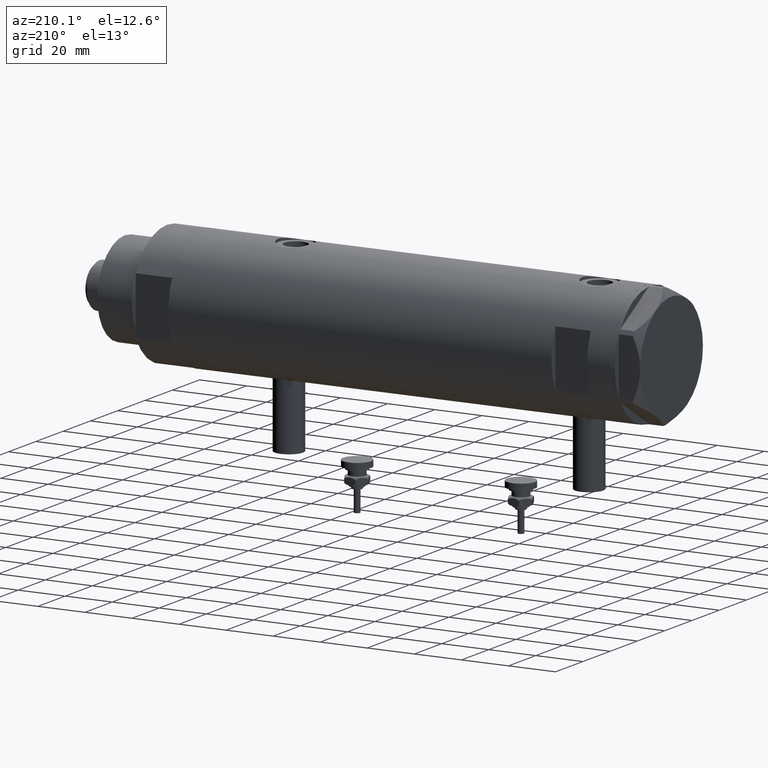
[diagram: clean part render]
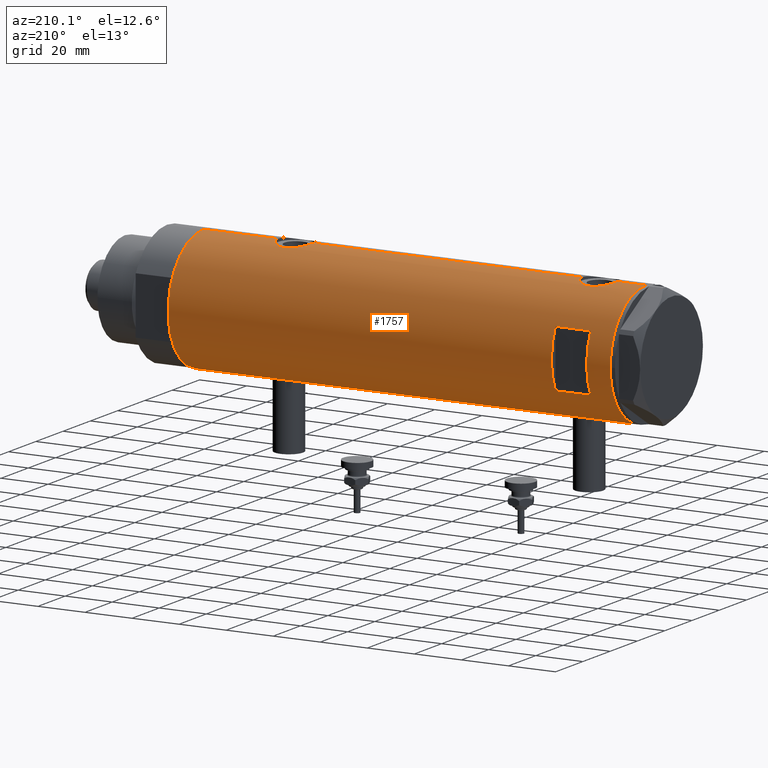
[diagram: same view with one face highlighted and labeled with its STEP entity id]
A machine part, auxiliary view. The second image highlights one B-rep face of the part: STEP entity #1757.
In plain terms, the highlighted cylindrical surface (partial cylindrical patch) has radius 26 mm, axis along (-1, -0, 0).
Its self-contained STEP definition (entity closure, byte-faithful):
#3 = CARTESIAN_POINT ( 'NONE',  ( -25.67095236150574777, 4.133649689219788925, 74.65535228274264057 ) ) ;
#16 = CARTESIAN_POINT ( 'NONE',  ( 25.11254978876589306, 6.737777305585155752, 71.11974648253585940 ) ) ;
#29 = CARTESIAN_POINT ( 'NONE',  ( -25.81251897318926680, 3.135439098787735190, 75.37199178085172946 ) ) ;
#86 = ORIENTED_EDGE ( 'NONE', *, *, #239, .T. ) ;
#97 = CARTESIAN_POINT ( 'NONE',  ( 0.000000000000000000, 0.000000000000000000, 93.95000000000000284 ) ) ;
#120 = CARTESIAN_POINT ( 'NONE',  ( -25.81206132723604796, 3.139065735901513055, 64.53021230639123473 ) ) ;
#161 = CARTESIAN_POINT ( 'NONE',  ( -25.85406084573621754, 2.777003695811657735, -52.03587158673904156 ) ) ;
#239 = EDGE_CURVE ( 'NONE', #767, #1150, #1666, .T. ) ;
#289 = LINE ( 'NONE', #2246, #4035 ) ;
#332 = DIRECTION ( 'NONE',  ( 0.000000000000000000, 4.625929269271486900E-15, 1.000000000000000000 ) ) ;
#344 = CARTESIAN_POINT ( 'NONE',  ( -26.00000000000000355, 1.227111019500118713E-15, 76.20000000000001705 ) ) ;
#349 = EDGE_CURVE ( 'NONE', #1827, #6166, #5914, .T. ) ;
#355 = VERTEX_POINT ( 'NONE', #4467 ) ;
#360 = CARTESIAN_POINT ( 'NONE',  ( 24.90976107960111818, 7.450765568638821001, 75.43882869351466525 ) ) ;
#378 = CARTESIAN_POINT ( 'NONE',  ( -25.59680708126580129, 4.563450671387948354, -61.92543949979970819 ) ) ;
#396 = CARTESIAN_POINT ( 'NONE',  ( 25.52465069878074289, 4.952713637311392247, 68.81255139184744962 ) ) ;
#402 = FACE_OUTER_BOUND ( 'NONE', #3021, .T. ) ;
#410 = CARTESIAN_POINT ( 'NONE',  ( 25.78997056644824326, 3.329333406239038951, -48.01165191566153112 ) ) ;
#425 = VERTEX_POINT ( 'NONE', #1969 ) ;
#431 = DIRECTION ( 'NONE',  ( 1.000000000000000000, 0.000000000000000000, 0.000000000000000000 ) ) ;
#438 = CARTESIAN_POINT ( 'NONE',  ( 25.98255381630415783, 0.9836221648041303389, -47.31066901941807856 ) ) ;
#440 = CARTESIAN_POINT ( 'NONE',  ( -25.92432690655987315, 2.018143994254076201, -63.57929422822715537 ) ) ;
#457 = CARTESIAN_POINT ( 'NONE',  ( 25.59685363299823635, 4.579266302355753382, 80.40972068102654191 ) ) ;
#473 = CARTESIAN_POINT ( 'NONE',  ( -25.36894112891957320, 5.694149517195235433, 67.36517494801691441 ) ) ;
#475 = ORIENTED_EDGE ( 'NONE', *, *, #3939, .F. ) ;
#501 = CARTESIAN_POINT ( 'NONE',  ( 12.12435565298214080, 23.00000000000000355, -93.95000000000000284 ) ) ;
#505 = CARTESIAN_POINT ( 'NONE',  ( -25.28673619335055278, 6.048783215285170378, 68.32449009651820404 ) ) ;
#512 = CARTESIAN_POINT ( 'NONE',  ( 26.00000000000000355, 0.000000000000000000, 93.95000000000000284 ) ) ;
#561 = CARTESIAN_POINT ( 'NONE',  ( -25.31738333113901263, 5.918941409682878074, 71.96757922472318114 ) ) ;
#595 = CARTESIAN_POINT ( 'NONE',  ( -25.85406084573621754, 2.777003695811651962, 75.56412841326095986 ) ) ;
#611 = B_SPLINE_CURVE_WITH_KNOTS ( 'NONE', 3,
 ( #2726, #5131, #4096, #2600, #733, #4639, #4540, #161, #2150, #1628, #3584, #5546, #2632, #3145, #1143, #5099, #2338, #2886, #3768, #6236, #5280, #3325, #4802, #5725, #5247, #6301, #881, #1438, #4293, #3362, #5315, #6199, #378, #1405, #1812, #6264, #5219, #440, #2400, #1844, #823, #849, #4832, #2818 ),
 .UNSPECIFIED., .F., .F.,
 ( 4, 2, 2, 2, 2, 2, 2, 2, 2, 2, 2, 2, 2, 2, 2, 2, 2, 2, 2, 2, 2, 4 ),
 ( 8.259724962660511443E-19, 0.001225774033668413547, 0.001838661050502616960, 0.002451548067336820590, 0.003677322101005227849, 0.004903096134673635108, 0.006128870168342044969, 0.007354644202010452228, 0.007967531218844647184, 0.008580418235678840405, 0.009806192269347230317, 0.01103196630301561676, 0.01225774033668400667, 0.01287062735351820163, 0.01348351437035239485, 0.01409640138718658807, 0.01470928840402078129, 0.01593506243768920069, 0.01716083647135761489, 0.01838661050502603256, 0.01899949752186024313, 0.01961238453869445023 ),
 .UNSPECIFIED. ) ;
#617 = CARTESIAN_POINT ( 'NONE',  ( 25.86510134953875450, 2.654921787384013854, -61.76867061694904493 ) ) ;
#620 = CARTESIAN_POINT ( 'NONE',  ( -26.00000000000000355, 3.184081677783118585E-15, -93.95000000000000284 ) ) ;
#647 = CARTESIAN_POINT ( 'NONE',  ( 25.30960479024496479, 5.958491152160522830, -59.33139677679963597 ) ) ;
#667 = DIRECTION ( 'NONE',  ( 0.000000000000000000, 0.000000000000000000, 1.000000000000000000 ) ) ;
#675 = EDGE_CURVE ( 'NONE', #1916, #355, #3410, .T. ) ;
#733 = CARTESIAN_POINT ( 'NONE',  ( -25.95015815577423268, 1.621168830448744158, -51.61041429560182081 ) ) ;
#741 = EDGE_CURVE ( 'NONE', #767, #2310, #5550, .T. ) ;
#757 = VERTEX_POINT ( 'NONE', #5361 ) ;
#767 = VERTEX_POINT ( 'NONE', #5070 ) ;
#823 = CARTESIAN_POINT ( 'NONE',  ( -25.98789693408478740, 0.8193301824842007530, -63.84948980265349405 ) ) ;
#834 = CARTESIAN_POINT ( 'NONE',  ( 25.78997056644825392, 3.329333406239046056, 81.18834808433850014 ) ) ;
#838 = CARTESIAN_POINT ( 'NONE',  ( 0.000000000000000000, 0.000000000000000000, -93.95000000000000284 ) ) ;
#847 = CARTESIAN_POINT ( 'NONE',  ( 25.08669247833291749, 6.831361936037321669, -51.64462260596209831 ) ) ;
#849 = CARTESIAN_POINT ( 'NONE',  ( -25.99759026373432036, 0.4091325989570689381, -63.88999890044897967 ) ) ;
#857 = CARTESIAN_POINT ( 'NONE',  ( 26.00000000000000355, 0.000000000000000000, -93.95000000000000284 ) ) ;
#864 = CARTESIAN_POINT ( 'NONE',  ( 25.78922176490238272, 3.335318700939508219, 67.71449431233527605 ) ) ;
#879 = CARTESIAN_POINT ( 'NONE',  ( 25.27545867390324119, 6.096774941222088628, -50.37522593042033492 ) ) ;
#881 = CARTESIAN_POINT ( 'NONE',  ( -25.38875076695534361, 5.605452563035141722, -60.42185900824105715 ) ) ;
#901 = CARTESIAN_POINT ( 'NONE',  ( 24.95233689475078620, 7.306396477445174398, 72.73896186853336587 ) ) ;
#916 = CARTESIAN_POINT ( 'NONE',  ( 25.17424625143663164, 6.506691718592096940, -58.51241626033723975 ) ) ;
#931 = CARTESIAN_POINT ( 'NONE',  ( 25.72868876879096334, 3.768709330223698473, 80.95267486870062612 ) ) ;
#941 = LINE ( 'NONE', #5371, #5575 ) ;
#975 = CARTESIAN_POINT ( 'NONE',  ( 25.00820649268565887, 7.115348876445586335, -52.32815999524549966 ) ) ;
#978 = CARTESIAN_POINT ( 'NONE',  ( -26.00000000000000355, 3.184077527325983904E-15, 63.70000000000000995 ) ) ;
#1016 = CARTESIAN_POINT ( 'NONE',  ( -25.31518616157687518, 5.930210831981638009, 67.93412882792976859 ) ) ;
#1042 = CARTESIAN_POINT ( 'NONE',  ( -25.99759026373432391, 0.4091325989570679389, 63.71000109955102175 ) ) ;
#1072 = CARTESIAN_POINT ( 'NONE',  ( -25.38875076695534361, 5.605452563035131064, 67.17814099175893716 ) ) ;
#1101 = CARTESIAN_POINT ( 'NONE',  ( 26.00000000000000711, 0.4983968644076025023, -62.25000000000002132 ) ) ;
#1131 = CARTESIAN_POINT ( 'NONE',  ( 25.38132706741445688, 5.649034551923786118, -59.70731952814044519 ) ) ;
#1143 = CARTESIAN_POINT ( 'NONE',  ( -25.38675822915647728, 5.615881323213575804, -54.87693218337989265 ) ) ;
#1150 = VERTEX_POINT ( 'NONE', #2537 ) ;
#1151 = DIRECTION ( 'NONE',  ( 1.000000000000000000, -5.329070518200751394E-15, 0.000000000000000000 ) ) ;
#1174 = LINE ( 'NONE', #3142, #6187 ) ;
#1197 = CARTESIAN_POINT ( 'NONE',  ( 25.98569222077104968, 0.9879514382926379845, -62.20081846687560301 ) ) ;
#1220 = ORIENTED_EDGE ( 'NONE', *, *, #4030, .F. ) ;
#1227 = ORIENTED_EDGE ( 'NONE', *, *, #3263, .F. ) ;
#1324 = CARTESIAN_POINT ( 'NONE',  ( 12.12435565298213724, 23.00000000000000355, 68.95000000000000284 ) ) ;
#1331 = CARTESIAN_POINT ( 'NONE',  ( 26.00000000000000000, 0.2455784580650491877, -47.25000000000000000 ) ) ;
#1349 = CARTESIAN_POINT ( 'NONE',  ( 25.00820649268565887, 7.115348876445588999, 76.87184000475453161 ) ) ;
#1350 = EDGE_CURVE ( 'NONE', #2022, #2547, #289, .T. ) ;
#1405 = CARTESIAN_POINT ( 'NONE',  ( -25.67176285215958131, 4.128807479817791837, -62.35991598451128226 ) ) ;
#1438 = CARTESIAN_POINT ( 'NONE',  ( -25.43062364804612940, 5.412314182902760784, -60.78227648580931941 ) ) ;
#1450 = CARTESIAN_POINT ( 'NONE',  ( 24.90951684770588770, 7.451587374037535128, 73.46604395478802019 ) ) ;
#1451 = EDGE_CURVE ( 'NONE', #355, #757, #941, .T. ) ;
#1495 = CARTESIAN_POINT ( 'NONE',  ( -25.92257874449350652, 2.014648337067151296, 75.86996418363679595 ) ) ;
#1532 = VERTEX_POINT ( 'NONE', #2097 ) ;
#1574 = EDGE_CURVE ( 'NONE', #1532, #1916, #1616, .T. ) ;
#1613 = CARTESIAN_POINT ( 'NONE',  ( 25.48882460966380492, 5.133289275481218716, -60.22343523597908188 ) ) ;
#1616 = LINE ( 'NONE', #501, #5473 ) ;
#1628 = CARTESIAN_POINT ( 'NONE',  ( -25.72105193281916868, 3.813738527046913962, -52.68166308900566719 ) ) ;
#1666 = CIRCLE ( 'NONE', #4022, 26.00000000000000355 ) ;
#1708 = ORIENTED_EDGE ( 'NONE', *, *, #675, .F. ) ;
#1754 = VERTEX_POINT ( 'NONE', #5122 ) ;
#1757 = ADVANCED_FACE ( 'NONE', ( #3786, #402 ), #6188, .T. ) ;
#1812 = CARTESIAN_POINT ( 'NONE',  ( -25.72087293759780025, 3.814831448865739105, -62.61738294827859619 ) ) ;
#1821 = DIRECTION ( 'NONE',  ( 0.000000000000000000, 0.000000000000000000, 1.000000000000000000 ) ) ;
#1827 = VERTEX_POINT ( 'NONE', #3313 ) ;
#1828 = CARTESIAN_POINT ( 'NONE',  ( 25.17424625143663519, 6.506691718592092499, 70.68758373966274178 ) ) ;
#1844 = CARTESIAN_POINT ( 'NONE',  ( -25.98057228346870673, 1.024901789261887464, -63.81880585854828070 ) ) ;
#1861 = CARTESIAN_POINT ( 'NONE',  ( 25.11550258961940330, 6.725017566862031337, 77.77928477806021590 ) ) ;
#1874 = CARTESIAN_POINT ( 'NONE',  ( 25.31017500740584936, 5.951503630041857562, -50.17950407362597076 ) ) ;
#1893 = CARTESIAN_POINT ( 'NONE',  ( 25.20855488770172315, 6.367749707222633226, 78.42002223040960018 ) ) ;
#1909 = CARTESIAN_POINT ( 'NONE',  ( 24.89484527721569052, 7.499778575171895056, -55.24550805482936511 ) ) ;
#1916 = VERTEX_POINT ( 'NONE', #1324 ) ;
#1948 = CARTESIAN_POINT ( 'NONE',  ( -25.42927140605242187, 5.422776733968214025, 73.08443996013286892 ) ) ;
#1962 = CARTESIAN_POINT ( 'NONE',  ( 25.86510134953875450, 2.654921787384013854, 67.43132938305096502 ) ) ;
#1964 = CARTESIAN_POINT ( 'NONE',  ( 26.00000000000000355, 0.000000000000000000, -93.95000000000000284 ) ) ;
#1969 = CARTESIAN_POINT ( 'NONE',  ( -26.00000000000000355, 3.184077527250253257E-15, -63.90000000000001279 ) ) ;
#1973 = CARTESIAN_POINT ( 'NONE',  ( -25.52242378584899640, 4.965907353613394193, 73.76719602921740204 ) ) ;
#2022 = VERTEX_POINT ( 'NONE', #2188 ) ;
#2047 = VERTEX_POINT ( 'NONE', #5142 ) ;
#2070 = CARTESIAN_POINT ( 'NONE',  ( -25.23766275406408965, 6.249830297096023557, 70.36191904555120402 ) ) ;
#2097 = CARTESIAN_POINT ( 'NONE',  ( 12.12435565298214080, 23.00000000000000355, 83.95000000000000284 ) ) ;
#2150 = CARTESIAN_POINT ( 'NONE',  ( -25.81251897318926680, 3.135439098787741852, -52.22800821914827907 ) ) ;
#2188 = CARTESIAN_POINT ( 'NONE',  ( 26.00000000000000355, -3.975028449552882818E-20, 81.94999999999998863 ) ) ;
#2223 = B_SPLINE_CURVE_WITH_KNOTS ( 'NONE', 3,
 ( #344, #4256, #3454, #3040, #5410, #1495, #5374, #595, #29, #4385, #3, #2564, #1973, #1948, #3895, #4959, #561, #5440, #3931, #4475, #2070, #3486, #2911, #505, #1016, #473, #1072, #5883, #5948, #4991, #2470, #3009, #4504, #2948, #3510, #120, #3996, #4024, #2979, #5848, #2532, #1042, #5975, #978 ),
 .UNSPECIFIED., .F., .F.,
 ( 4, 2, 2, 2, 2, 2, 2, 2, 2, 2, 2, 2, 2, 2, 2, 2, 2, 2, 2, 2, 2, 4 ),
 ( 1.191872608207982896E-18, 0.001225774033668414415, 0.001838661050502624766, 0.002451548067336834901, 0.003677322101005254303, 0.004903096134673673272, 0.006128870168342093541, 0.007354644202010512943, 0.007967531218844704430, 0.008580418235678894182, 0.009806192269347313584, 0.01103196630301573472, 0.01225774033668415586, 0.01287062735351834561, 0.01348351437035253536, 0.01409640138718672858, 0.01470928840402092007, 0.01593506243768930131, 0.01716083647135768081, 0.01838661050502606725, 0.01899949752186025700, 0.01961238453869444676 ),
 .UNSPECIFIED. ) ;
#2246 = CARTESIAN_POINT ( 'NONE',  ( 26.00000000000000355, 0.000000000000000000, -93.95000000000000284 ) ) ;
#2310 = VERTEX_POINT ( 'NONE', #2700 ) ;
#2321 = CARTESIAN_POINT ( 'NONE',  ( 25.93077501166307641, 1.957027822413550888, 81.70697858562411398 ) ) ;
#2337 = CARTESIAN_POINT ( 'NONE',  ( 25.97197502027375293, 1.230965554787593730, -47.34759175501623218 ) ) ;
#2338 = CARTESIAN_POINT ( 'NONE',  ( -25.31738333113901618, 5.918941409682884291, -55.63242077527677765 ) ) ;
#2352 = ORIENTED_EDGE ( 'NONE', *, *, #1574, .F. ) ;
#2382 = CARTESIAN_POINT ( 'NONE',  ( 25.63006864069250668, 4.375159448492141223, 68.35345588241118264 ) ) ;
#2397 = VECTOR ( 'NONE', #667, 1000.000000000000000 ) ;
#2400 = CARTESIAN_POINT ( 'NONE',  ( -25.95208098418916975, 1.628413954368986172, -63.69806792170716392 ) ) ;
#2415 = EDGE_CURVE ( 'NONE', #2047, #1754, #4769, .T. ) ;
#2432 = CARTESIAN_POINT ( 'NONE',  ( 25.59685363299823280, 4.579266302355748053, -48.79027931897346804 ) ) ;
#2457 = CARTESIAN_POINT ( 'NONE',  ( 25.88814720404043968, 2.420758939209242566, 67.34711713171545000 ) ) ;
#2467 = DIRECTION ( 'NONE',  ( -0.000000000000000000, -0.000000000000000000, -1.000000000000000000 ) ) ;
#2470 = CARTESIAN_POINT ( 'NONE',  ( -25.52275868012768356, 4.960454986366445773, 66.14238370593371030 ) ) ;
#2532 = CARTESIAN_POINT ( 'NONE',  ( -25.98789693408479096, 0.8193301824841990877, 63.75051019734653579 ) ) ;
#2537 = CARTESIAN_POINT ( 'NONE',  ( -26.00000000000000355, 3.184081677783118585E-15, -93.95000000000000284 ) ) ;
#2547 = VERTEX_POINT ( 'NONE', #512 ) ;
#2564 = CARTESIAN_POINT ( 'NONE',  ( -25.57189498399054983, 4.707763994471525493, 74.08090281055548587 ) ) ;
#2575 = ORIENTED_EDGE ( 'NONE', *, *, #3561, .F. ) ;
#2585 = CARTESIAN_POINT ( 'NONE',  ( 25.72923282622328855, 3.765147152416745246, -61.25485575784708914 ) ) ;
#2593 = DIRECTION ( 'NONE',  ( 0.000000000000000000, 0.000000000000000000, 1.000000000000000000 ) ) ;
#2600 = CARTESIAN_POINT ( 'NONE',  ( -25.96182217530152769, 1.422664245316466847, -51.56064726907609241 ) ) ;
#2632 = CARTESIAN_POINT ( 'NONE',  ( -25.52242378584900351, 4.965907353613399522, -53.83280397078263491 ) ) ;
#2700 = CARTESIAN_POINT ( 'NONE',  ( 26.00000000000000355, 3.343657407582877388E-16, -62.25000000000000000 ) ) ;
#2726 = CARTESIAN_POINT ( 'NONE',  ( -26.00000000000000355, -8.503928565788675107E-16, -51.39999999999999858 ) ) ;
#2731 = EDGE_CURVE ( 'NONE', #5866, #4735, #1174, .T. ) ;
#2752 = DIRECTION ( 'NONE',  ( 0.000000000000000000, 0.000000000000000000, 1.000000000000000000 ) ) ;
#2769 = B_SPLINE_CURVE_WITH_KNOTS ( 'NONE', 3,
 ( #5263, #4881, #5298, #3780, #5358, #2457, #1962, #864, #6222, #2382, #5327, #396, #6281, #4336, #4402, #1828, #16, #3378, #2800, #4305, #901, #1450, #5865, #2897, #360, #3280, #1349, #3308, #1861, #2833, #1893, #2870, #4747, #4781, #6249, #5232, #457, #931, #834, #3811, #2321, #2927, #3847, #4816, #5801, #5766 ),
 .UNSPECIFIED., .F., .F.,
 ( 4, 2, 2, 2, 2, 2, 2, 2, 2, 2, 2, 2, 2, 2, 2, 2, 2, 2, 2, 2, 2, 2, 4 ),
 ( 2.668061416744542197E-18, 0.001473395154583026240, 0.002210092731874533506, 0.002946790309166040771, 0.004420185463749071349, 0.005156883041040585987, 0.005893580618332101492, 0.007366975772915162861, 0.008840370927498224229, 0.009577068504789754480, 0.01031376608208128473, 0.01178716123666438687, 0.01326055639124748900, 0.01473395154583059113, 0.01547064912312212312, 0.01620734670041365511, 0.01694404427770518709, 0.01768074185499672255, 0.01915413700957975529, 0.02062753216416278457, 0.02210092731874581731, 0.02283762489603732848, 0.02357432247332884312 ),
 .UNSPECIFIED. ) ;
#2800 = CARTESIAN_POINT ( 'NONE',  ( 25.01140519645288762, 7.101774040639619479, 72.02607764299175130 ) ) ;
#2811 = CARTESIAN_POINT ( 'NONE',  ( -26.00000000000000355, 3.184081677783118585E-15, -93.95000000000000284 ) ) ;
#2815 = DIRECTION ( 'NONE',  ( 0.000000000000000000, 0.000000000000000000, 1.000000000000000000 ) ) ;
#2816 = CARTESIAN_POINT ( 'NONE',  ( 26.00000000000000355, -3.975025925197986111E-20, -47.25000000000000000 ) ) ;
#2818 = CARTESIAN_POINT ( 'NONE',  ( -26.00000000000000355, 3.184077527250253257E-15, -63.90000000000001279 ) ) ;
#2833 = CARTESIAN_POINT ( 'NONE',  ( 25.17636585680005723, 6.493453152855874322, 78.21099249662802322 ) ) ;
#2851 = CARTESIAN_POINT ( 'NONE',  ( 24.95233689475079331, 7.306396477445179727, -56.46103813146666539 ) ) ;
#2870 = CARTESIAN_POINT ( 'NONE',  ( 25.27545867390324830, 6.096774941222087740, 78.82477406957966082 ) ) ;
#2883 = CARTESIAN_POINT ( 'NONE',  ( 24.90976107960111818, 7.450765568638821890, -53.76117130648535181 ) ) ;
#2886 = CARTESIAN_POINT ( 'NONE',  ( -25.28915991580758771, 6.038390257328915212, -56.02447348853092279 ) ) ;
#2897 = CARTESIAN_POINT ( 'NONE',  ( 24.89471231507667426, 7.500219916954787180, 74.93878226883029470 ) ) ;
#2911 = CARTESIAN_POINT ( 'NONE',  ( -25.24784248027028966, 6.209126813737962713, 69.12731838311943022 ) ) ;
#2927 = CARTESIAN_POINT ( 'NONE',  ( 25.97197502027376004, 1.230965554787597060, 81.85240824498373513 ) ) ;
#2945 = CARTESIAN_POINT ( 'NONE',  ( 25.11550258961939974, 6.725017566862030449, -51.42071522193980826 ) ) ;
#2948 = CARTESIAN_POINT ( 'NONE',  ( -25.67176285215957776, 4.128807479817784731, 65.24008401548877600 ) ) ;
#2979 = CARTESIAN_POINT ( 'NONE',  ( -25.95208098418916975, 1.628413954368974625, 63.90193207829288013 ) ) ;
#3009 = CARTESIAN_POINT ( 'NONE',  ( -25.57167265924275057, 4.701795585128869526, 65.82723711689968127 ) ) ;
#3021 = EDGE_LOOP ( 'NONE', ( #86, #5650, #475, #3992, #1220, #4765, #3681, #4369, #1227, #5990, #3800, #5735 ) ) ;
#3023 = AXIS2_PLACEMENT_3D ( 'NONE', #838, #4723, #431 ) ;
#3040 = CARTESIAN_POINT ( 'NONE',  ( -25.96182217530153480, 1.422664245316465959, 76.03935273092392322 ) ) ;
#3066 = CARTESIAN_POINT ( 'NONE',  ( 25.88814720404043968, 2.420758939209242566, -61.85288286828453153 ) ) ;
#3142 = CARTESIAN_POINT ( 'NONE',  ( -26.00000000000000355, 3.184081677783118585E-15, -93.95000000000000284 ) ) ;
#3145 = CARTESIAN_POINT ( 'NONE',  ( -25.42927140605242187, 5.422776733968219354, -54.51556003986718224 ) ) ;
#3165 = CARTESIAN_POINT ( 'NONE',  ( 25.94484652078418563, 1.709678645892020787, -62.05665346759173673 ) ) ;
#3226 = VECTOR ( 'NONE', #1821, 1000.000000000000000 ) ;
#3235 = ORIENTED_EDGE ( 'NONE', *, *, #1451, .F. ) ;
#3263 = EDGE_CURVE ( 'NONE', #1754, #2022, #2769, .T. ) ;
#3280 = CARTESIAN_POINT ( 'NONE',  ( 24.96662810169869573, 7.257932614256865200, 76.40297309526735603 ) ) ;
#3292 = CARTESIAN_POINT ( 'NONE',  ( 25.38117076385348625, 5.641057083563588037, -49.80143420258151821 ) ) ;
#3308 = CARTESIAN_POINT ( 'NONE',  ( 25.08669247833292459, 6.831361936037321669, 77.55537739403790454 ) ) ;
#3311 = AXIS2_PLACEMENT_3D ( 'NONE', #5770, #332, #4277 ) ;
#3313 = CARTESIAN_POINT ( 'NONE',  ( -26.00000000000000355, -8.503928565788675107E-16, -51.39999999999999858 ) ) ;
#3323 = CARTESIAN_POINT ( 'NONE',  ( 25.11254978876589306, 6.737777305585159304, -58.08025351746411502 ) ) ;
#3325 = CARTESIAN_POINT ( 'NONE',  ( -25.23757896588369221, 6.250168635417633567, -58.05675308410501145 ) ) ;
#3362 = CARTESIAN_POINT ( 'NONE',  ( -25.49884629689154636, 5.081547904122044379, -61.29439805696090815 ) ) ;
#3365 = CIRCLE ( 'NONE', #4691, 26.00000000000000355 ) ;
#3378 = CARTESIAN_POINT ( 'NONE',  ( 25.03487248886523986, 7.018875226450789206, 71.79576782607935570 ) ) ;
#3385 = LINE ( 'NONE', #2811, #3861 ) ;
#3410 = CIRCLE ( 'NONE', #3311, 26.00000000000000355 ) ;
#3415 = CARTESIAN_POINT ( 'NONE',  ( 24.97016856345952718, 7.245430721349219283, -56.70303040919392856 ) ) ;
#3442 = DIRECTION ( 'NONE',  ( 0.000000000000000000, 0.000000000000000000, 1.000000000000000000 ) ) ;
#3454 = CARTESIAN_POINT ( 'NONE',  ( -25.99009688862344092, 0.8219492608955324409, 76.15915939226574949 ) ) ;
#3486 = CARTESIAN_POINT ( 'NONE',  ( -25.23757896588369576, 6.250168635417627350, 69.54324691589501128 ) ) ;
#3487 = DIRECTION ( 'NONE',  ( 1.000000000000000000, 0.000000000000000000, 0.000000000000000000 ) ) ;
#3510 = CARTESIAN_POINT ( 'NONE',  ( -25.72087293759779669, 3.814831448865735997, 64.98261705172141944 ) ) ;
#3561 = EDGE_CURVE ( 'NONE', #757, #1532, #5387, .T. ) ;
#3584 = CARTESIAN_POINT ( 'NONE',  ( -25.67095236150573712, 4.133649689219792478, -52.94464771725741770 ) ) ;
#3631 = CARTESIAN_POINT ( 'NONE',  ( -26.00000000000000355, 3.184077527325983904E-15, 63.70000000000000995 ) ) ;
#3681 = ORIENTED_EDGE ( 'NONE', *, *, #5243, .F. ) ;
#3768 = CARTESIAN_POINT ( 'NONE',  ( -25.27696731428695287, 6.089059008147567731, -56.22583693040519393 ) ) ;
#3780 = CARTESIAN_POINT ( 'NONE',  ( 25.94484652078418563, 1.709678645892022342, 67.14334653240823059 ) ) ;
#3786 = FACE_BOUND ( 'NONE', #4259, .T. ) ;
#3800 = ORIENTED_EDGE ( 'NONE', *, *, #5779, .F. ) ;
#3811 = CARTESIAN_POINT ( 'NONE',  ( 25.89067367629246164, 2.424883365422562775, 81.56405204505169593 ) ) ;
#3847 = CARTESIAN_POINT ( 'NONE',  ( 25.98255381630416139, 0.9836221648041364451, 81.88933098058191717 ) ) ;
#3861 = VECTOR ( 'NONE', #2752, 1000.000000000000000 ) ;
#3893 = CARTESIAN_POINT ( 'NONE',  ( 25.41763780493360514, 5.474943943663457269, -49.61823686211067042 ) ) ;
#3895 = CARTESIAN_POINT ( 'NONE',  ( -25.38675822915647728, 5.615881323213574028, 72.72306781662010167 ) ) ;
#3905 = CARTESIAN_POINT ( 'NONE',  ( -26.00000000000000355, 3.184081677783118585E-15, 93.95000000000000284 ) ) ;
#3931 = CARTESIAN_POINT ( 'NONE',  ( -25.27696731428695998, 6.089059008147561514, 71.37416306959482881 ) ) ;
#3939 = EDGE_CURVE ( 'NONE', #1827, #425, #611, .T. ) ;
#3992 = ORIENTED_EDGE ( 'NONE', *, *, #349, .T. ) ;
#3996 = CARTESIAN_POINT ( 'NONE',  ( -25.85449082491264150, 2.772892880050696007, 64.33390702514678594 ) ) ;
#4022 = AXIS2_PLACEMENT_3D ( 'NONE', #5720, #4858, #4378 ) ;
#4024 = CARTESIAN_POINT ( 'NONE',  ( -25.92432690655987315, 2.018143994254077978, 64.02070577177286737 ) ) ;
#4030 = EDGE_CURVE ( 'NONE', #5866, #6166, #2223, .T. ) ;
#4035 = VECTOR ( 'NONE', #6138, 1000.000000000000000 ) ;
#4048 = CARTESIAN_POINT ( 'NONE',  ( 25.52465069878074999, 4.952713637311402906, -60.38744860815256743 ) ) ;
#4049 = AXIS2_PLACEMENT_3D ( 'NONE', #5618, #5199, #1151 ) ;
#4096 = CARTESIAN_POINT ( 'NONE',  ( -25.99009688862344092, 0.8219492608955333290, -51.44084060773424483 ) ) ;
#4256 = CARTESIAN_POINT ( 'NONE',  ( -26.00000000000000711, 0.4145874687851191509, 76.20000000000003126 ) ) ;
#4259 = EDGE_LOOP ( 'NONE', ( #3235, #1708, #2352, #2575 ) ) ;
#4277 = DIRECTION ( 'NONE',  ( 0.000000000000000000, 1.000000000000000000, -4.803849625781927035E-15 ) ) ;
#4293 = CARTESIAN_POINT ( 'NONE',  ( -25.45277932469921467, 5.307477387851106343, -60.95672800165311855 ) ) ;
#4305 = CARTESIAN_POINT ( 'NONE',  ( 24.97016856345952007, 7.245430721349213954, 72.49696959080606007 ) ) ;
#4336 = CARTESIAN_POINT ( 'NONE',  ( 25.38132706741445332, 5.649034551923781677, 69.49268047185955766 ) ) ;
#4369 = ORIENTED_EDGE ( 'NONE', *, *, #1350, .F. ) ;
#4378 = DIRECTION ( 'NONE',  ( 1.000000000000000000, 0.000000000000000000, 0.000000000000000000 ) ) ;
#4385 = CARTESIAN_POINT ( 'NONE',  ( -25.72105193281917579, 3.813738527046907745, 74.91833691099432713 ) ) ;
#4402 = CARTESIAN_POINT ( 'NONE',  ( 25.30960479024496479, 5.958491152160513948, 69.86860322320036687 ) ) ;
#4467 = CARTESIAN_POINT ( 'NONE',  ( -12.12435565298214080, 23.00000000000000355, 68.95000000000000284 ) ) ;
#4475 = CARTESIAN_POINT ( 'NONE',  ( -25.24766879991037172, 6.209837761082654062, 70.76849569029700149 ) ) ;
#4504 = CARTESIAN_POINT ( 'NONE',  ( -25.59680708126579773, 4.563450671387936808, 65.67456050020027192 ) ) ;
#4524 = CARTESIAN_POINT ( 'NONE',  ( 25.59528664075983428, 4.573671112500298896, -60.69909503516726090 ) ) ;
#4527 = DIRECTION ( 'NONE',  ( 0.000000000000000000, 0.000000000000000000, 1.000000000000000000 ) ) ;
#4540 = CARTESIAN_POINT ( 'NONE',  ( -25.90661719257678541, 2.209805098346977914, -51.80011254218477745 ) ) ;
#4639 = CARTESIAN_POINT ( 'NONE',  ( -25.92257874449351007, 2.014648337067152184, -51.73003581636323389 ) ) ;
#4691 = AXIS2_PLACEMENT_3D ( 'NONE', #97, #2593, #3487 ) ;
#4723 = DIRECTION ( 'NONE',  ( 0.000000000000000000, 0.000000000000000000, 1.000000000000000000 ) ) ;
#4735 = VERTEX_POINT ( 'NONE', #3905 ) ;
#4747 = CARTESIAN_POINT ( 'NONE',  ( 25.31017500740586001, 5.951503630041874437, 79.02049592637401076 ) ) ;
#4765 = ORIENTED_EDGE ( 'NONE', *, *, #2731, .T. ) ;
#4769 = LINE ( 'NONE', #857, #3226 ) ;
#4781 = CARTESIAN_POINT ( 'NONE',  ( 25.38117076385347559, 5.641057083563602248, 79.39856579741847042 ) ) ;
#4801 = CARTESIAN_POINT ( 'NONE',  ( 25.52590365620542912, 4.955152228772147893, -49.09876272411761988 ) ) ;
#4802 = CARTESIAN_POINT ( 'NONE',  ( -25.24784248027028966, 6.209126813737967154, -58.47268161688059251 ) ) ;
#4816 = CARTESIAN_POINT ( 'NONE',  ( 25.99652140603931727, 0.4914164889130596126, 81.93796820480459075 ) ) ;
#4830 = CARTESIAN_POINT ( 'NONE',  ( 24.96662810169869573, 7.257932614256868753, -52.79702690473266102 ) ) ;
#4832 = CARTESIAN_POINT ( 'NONE',  ( -26.00000000000000711, 0.2043916521039016998, -63.90000000000001279 ) ) ;
#4858 = DIRECTION ( 'NONE',  ( 0.000000000000000000, 0.000000000000000000, 1.000000000000000000 ) ) ;
#4881 = CARTESIAN_POINT ( 'NONE',  ( 26.00000000000001066, 0.4983968644076011700, 66.95000000000003126 ) ) ;
#4896 = CARTESIAN_POINT ( 'NONE',  ( 25.93077501166307641, 1.957027822413551332, -47.49302141437592439 ) ) ;
#4959 = CARTESIAN_POINT ( 'NONE',  ( -25.33346170681504361, 5.849967696906720249, 72.15947052099508596 ) ) ;
#4991 = CARTESIAN_POINT ( 'NONE',  ( -25.49884629689154281, 5.081547904122039938, 66.30560194303913590 ) ) ;
#5070 = CARTESIAN_POINT ( 'NONE',  ( 26.00000000000000355, 0.000000000000000000, -93.95000000000000284 ) ) ;
#5099 = CARTESIAN_POINT ( 'NONE',  ( -25.33346170681504006, 5.849967696906726466, -55.44052947900495809 ) ) ;
#5119 = CARTESIAN_POINT ( 'NONE',  ( 25.92799636947105313, 1.948138538329397651, -61.99677687788213376 ) ) ;
#5122 = CARTESIAN_POINT ( 'NONE',  ( 26.00000000000000355, -2.747580718823405516E-15, 66.95000000000000284 ) ) ;
#5131 = CARTESIAN_POINT ( 'NONE',  ( -26.00000000000000711, 0.4145874687851193174, -51.39999999999999858 ) ) ;
#5142 = CARTESIAN_POINT ( 'NONE',  ( 26.00000000000000355, -3.975025925197986111E-20, -47.25000000000000000 ) ) ;
#5199 = DIRECTION ( 'NONE',  ( -0.000000000000000000, -0.000000000000000000, -1.000000000000000000 ) ) ;
#5219 = CARTESIAN_POINT ( 'NONE',  ( -25.85449082491264150, 2.772892880050693787, -63.26609297485322259 ) ) ;
#5232 = CARTESIAN_POINT ( 'NONE',  ( 25.52590365620543622, 4.955152228772151446, 80.10123727588241138 ) ) ;
#5243 = EDGE_CURVE ( 'NONE', #2547, #4735, #3365, .T. ) ;
#5244 = CARTESIAN_POINT ( 'NONE',  ( 25.01140519645288762, 7.101774040639623919, -57.17392235700823733 ) ) ;
#5247 = CARTESIAN_POINT ( 'NONE',  ( -25.31518616157687163, 5.930210831981644226, -59.66587117207024704 ) ) ;
#5263 = CARTESIAN_POINT ( 'NONE',  ( 26.00000000000000355, -2.747580718823405516E-15, 66.95000000000000284 ) ) ;
#5277 = CARTESIAN_POINT ( 'NONE',  ( 24.89471231507667071, 7.500219916954787180, -54.26121773116971525 ) ) ;
#5280 = CARTESIAN_POINT ( 'NONE',  ( -25.23766275406409676, 6.249830297096031551, -57.23808095444884003 ) ) ;
#5298 = CARTESIAN_POINT ( 'NONE',  ( 25.98569222077104968, 0.9879514382926418703, 66.99918153312439983 ) ) ;
#5313 = CARTESIAN_POINT ( 'NONE',  ( 24.90951684770588415, 7.451587374037536016, -55.73395604521197555 ) ) ;
#5315 = CARTESIAN_POINT ( 'NONE',  ( -25.52275868012768356, 4.960454986366454655, -61.45761629406634796 ) ) ;
#5327 = CARTESIAN_POINT ( 'NONE',  ( 25.59528664075984139, 4.573671112500290903, 68.50090496483272773 ) ) ;
#5358 = CARTESIAN_POINT ( 'NONE',  ( 25.92799636947105668, 1.948138538329397651, 67.20322312211786198 ) ) ;
#5361 = CARTESIAN_POINT ( 'NONE',  ( -12.12435565298214080, 23.00000000000000355, 83.95000000000000284 ) ) ;
#5371 = CARTESIAN_POINT ( 'NONE',  ( -12.12435565298214080, 23.00000000000000355, -93.95000000000000284 ) ) ;
#5374 = CARTESIAN_POINT ( 'NONE',  ( -25.90661719257679607, 2.209805098346973029, 75.79988745781523107 ) ) ;
#5387 = CIRCLE ( 'NONE', #4049, 26.00000000000000355 ) ;
#5410 = CARTESIAN_POINT ( 'NONE',  ( -25.95015815577422913, 1.621168830448742826, 75.98958570439820903 ) ) ;
#5440 = CARTESIAN_POINT ( 'NONE',  ( -25.28915991580760192, 6.038390257328910771, 71.57552651146907863 ) ) ;
#5460 = EDGE_CURVE ( 'NONE', #1150, #425, #3385, .T. ) ;
#5473 = VECTOR ( 'NONE', #2467, 1000.000000000000000 ) ;
#5532 = CARTESIAN_POINT ( 'NONE',  ( 25.63006864069249602, 4.375159448492148329, -60.84654411758881309 ) ) ;
#5546 = CARTESIAN_POINT ( 'NONE',  ( -25.57189498399055694, 4.707763994471532598, -53.51909718944453687 ) ) ;
#5550 = LINE ( 'NONE', #1964, #2397 ) ;
#5575 = VECTOR ( 'NONE', #2815, 1000.000000000000000 ) ;
#5618 = CARTESIAN_POINT ( 'NONE',  ( 0.000000000000000000, 0.000000000000000000, 83.95000000000000284 ) ) ;
#5650 = ORIENTED_EDGE ( 'NONE', *, *, #5460, .T. ) ;
#5720 = CARTESIAN_POINT ( 'NONE',  ( 0.000000000000000000, 0.000000000000000000, -93.95000000000000284 ) ) ;
#5723 = CARTESIAN_POINT ( 'NONE',  ( 25.20855488770171959, 6.367749707222635891, -50.77997776959043108 ) ) ;
#5725 = CARTESIAN_POINT ( 'NONE',  ( -25.28673619335056699, 6.048783215285175707, -59.27550990348180449 ) ) ;
#5735 = ORIENTED_EDGE ( 'NONE', *, *, #741, .F. ) ;
#5748 = CARTESIAN_POINT ( 'NONE',  ( -26.00000000000000355, 1.227111019500118713E-15, 76.20000000000001705 ) ) ;
#5766 = CARTESIAN_POINT ( 'NONE',  ( 26.00000000000000355, -3.975028449552882818E-20, 81.94999999999998863 ) ) ;
#5770 = CARTESIAN_POINT ( 'NONE',  ( 0.000000000000000000, 0.000000000000000000, 68.95000000000008811 ) ) ;
#5779 = EDGE_CURVE ( 'NONE', #2310, #2047, #6254, .T. ) ;
#5801 = CARTESIAN_POINT ( 'NONE',  ( 26.00000000000000711, 0.2455784580650491045, 81.94999999999997442 ) ) ;
#5818 = CARTESIAN_POINT ( 'NONE',  ( 25.89067367629246164, 2.424883365422552561, -47.63594795494832113 ) ) ;
#5846 = CARTESIAN_POINT ( 'NONE',  ( 25.72868876879095623, 3.768709330223690479, -48.24732513129933409 ) ) ;
#5848 = CARTESIAN_POINT ( 'NONE',  ( -25.98057228346869607, 1.024901789261878138, 63.78119414145174204 ) ) ;
#5859 = VECTOR ( 'NONE', #4527, 1000.000000000000000 ) ;
#5865 = CARTESIAN_POINT ( 'NONE',  ( 24.89484527721569052, 7.499778575171894168, 73.95449194517063063 ) ) ;
#5866 = VERTEX_POINT ( 'NONE', #5748 ) ;
#5883 = CARTESIAN_POINT ( 'NONE',  ( -25.43062364804611875, 5.412314182902751902, 66.81772351419068912 ) ) ;
#5914 = LINE ( 'NONE', #620, #5859 ) ;
#5948 = CARTESIAN_POINT ( 'NONE',  ( -25.45277932469920046, 5.307477387851101014, 66.64327199834690418 ) ) ;
#5975 = CARTESIAN_POINT ( 'NONE',  ( -26.00000000000000000, 0.2043916521039007284, 63.69999999999999574 ) ) ;
#5990 = ORIENTED_EDGE ( 'NONE', *, *, #2415, .F. ) ;
#6000 = CARTESIAN_POINT ( 'NONE',  ( 25.78922176490237916, 3.335318700939508219, -61.48550568766475521 ) ) ;
#6061 = CARTESIAN_POINT ( 'NONE',  ( 26.00000000000000355, 3.343657407582877388E-16, -62.25000000000000000 ) ) ;
#6138 = DIRECTION ( 'NONE',  ( 0.000000000000000000, 0.000000000000000000, 1.000000000000000000 ) ) ;
#6166 = VERTEX_POINT ( 'NONE', #3631 ) ;
#6187 = VECTOR ( 'NONE', #3442, 1000.000000000000000 ) ;
#6188 = CYLINDRICAL_SURFACE ( 'NONE', #3023, 26.00000000000000355 ) ;
#6197 = CARTESIAN_POINT ( 'NONE',  ( 25.03487248886523986, 7.018875226450791871, -57.40423217392064714 ) ) ;
#6199 = CARTESIAN_POINT ( 'NONE',  ( -25.57167265924275057, 4.701795585128879296, -61.77276288310033436 ) ) ;
#6222 = CARTESIAN_POINT ( 'NONE',  ( 25.72923282622328500, 3.765147152416739917, 67.94514424215293502 ) ) ;
#6236 = CARTESIAN_POINT ( 'NONE',  ( -25.24766879991037882, 6.209837761082661167, -56.83150430970306388 ) ) ;
#6249 = CARTESIAN_POINT ( 'NONE',  ( 25.41763780493359803, 5.474943943663456380, 79.58176313788932532 ) ) ;
#6254 = B_SPLINE_CURVE_WITH_KNOTS ( 'NONE', 3,
 ( #6061, #1101, #1197, #3165, #5119, #3066, #617, #6000, #2585, #5532, #4524, #4048, #1613, #1131, #647, #916, #3323, #6197, #5244, #3415, #2851, #5313, #1909, #5277, #2883, #4830, #975, #847, #2945, #6297, #5723, #879, #1874, #3292, #3893, #4801, #2432, #5846, #410, #5818, #4896, #2337, #438, #6262, #1331, #2816 ),
 .UNSPECIFIED., .F., .F.,
 ( 4, 2, 2, 2, 2, 2, 2, 2, 2, 2, 2, 2, 2, 2, 2, 2, 2, 2, 2, 2, 2, 2, 4 ),
 ( 3.246886709775799722E-19, 0.001473395154583074379, 0.002210092731874609400, 0.002946790309166144421, 0.004420185463749214463, 0.005156883041040750786, 0.005893580618332287108, 0.007366975772915358017, 0.008840370927498430662, 0.009577068504789955708, 0.01031376608208147902, 0.01178716123666452911, 0.01326055639124757921, 0.01473395154583062930, 0.01547064912312214567, 0.01620734670041366204, 0.01694404427770517668, 0.01768074185499669479, 0.01915413700957973794, 0.02062753216416278457, 0.02210092731874583119, 0.02283762489603735277, 0.02357432247332888128 ),
 .UNSPECIFIED. ) ;
#6262 = CARTESIAN_POINT ( 'NONE',  ( 25.99652140603931727, 0.4914164889130531177, -47.26203179519542630 ) ) ;
#6264 = CARTESIAN_POINT ( 'NONE',  ( -25.81206132723605506, 3.139065735901513055, -63.06978769360878090 ) ) ;
#6281 = CARTESIAN_POINT ( 'NONE',  ( 25.48882460966380492, 5.133289275481214275, 68.97656476402090675 ) ) ;
#6297 = CARTESIAN_POINT ( 'NONE',  ( 25.17636585680005723, 6.493453152855874322, -50.98900750337196541 ) ) ;
#6301 = CARTESIAN_POINT ( 'NONE',  ( -25.36894112891956254, 5.694149517195242538, -60.23482505198307990 ) ) ;